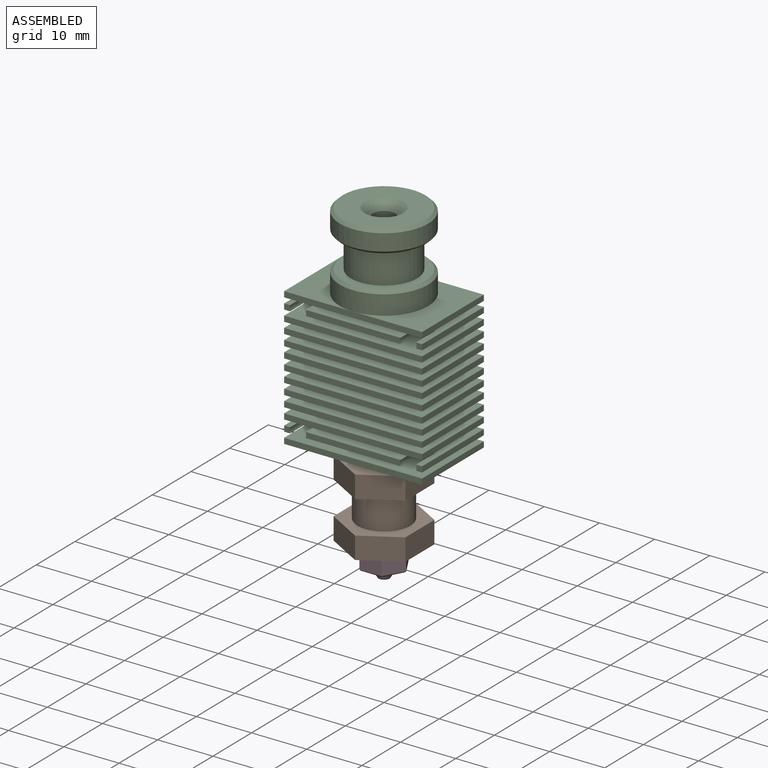
[diagram: assembled view]
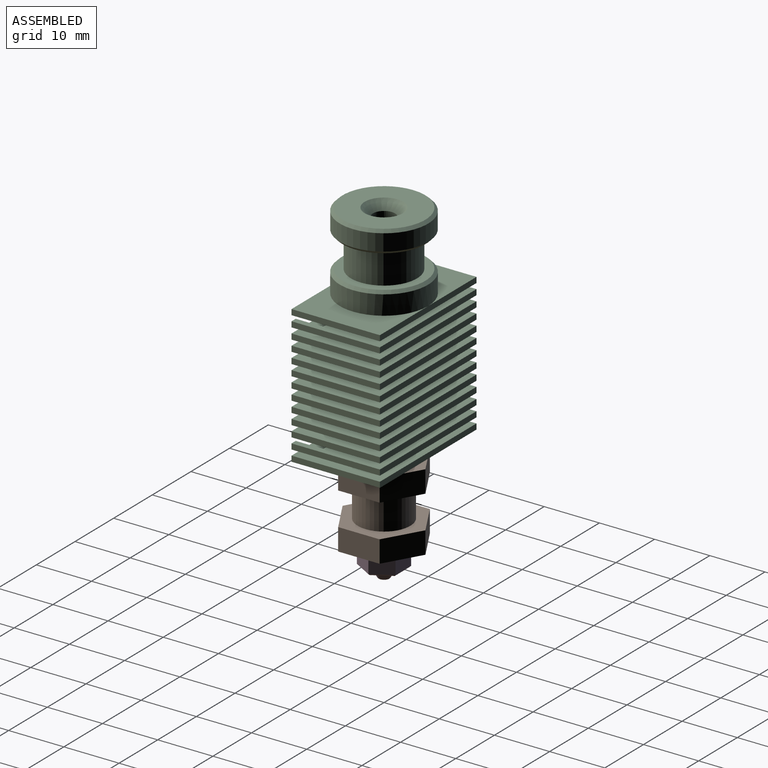
[diagram: assembled view, second angle]
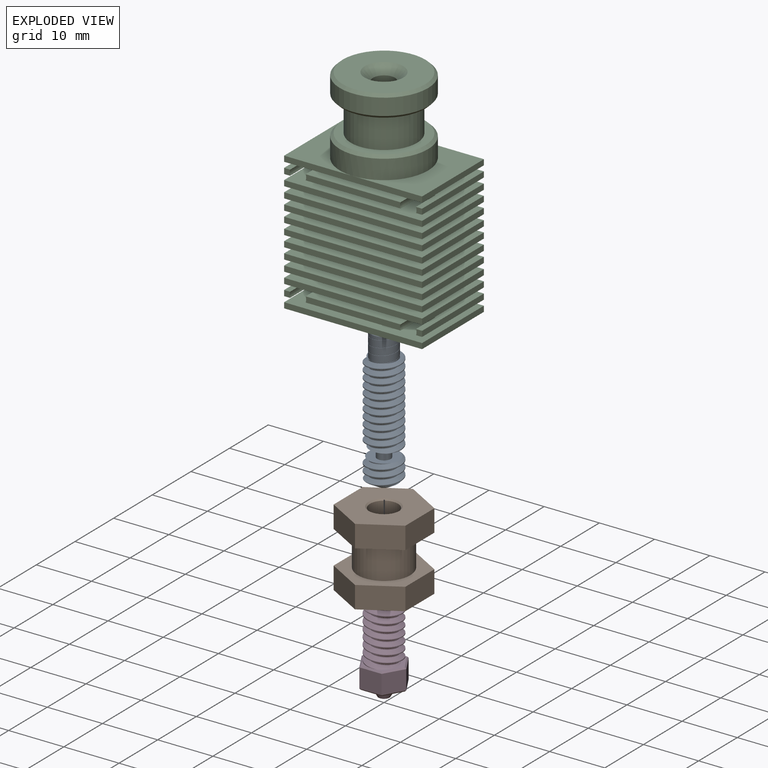
[diagram: exploded view]
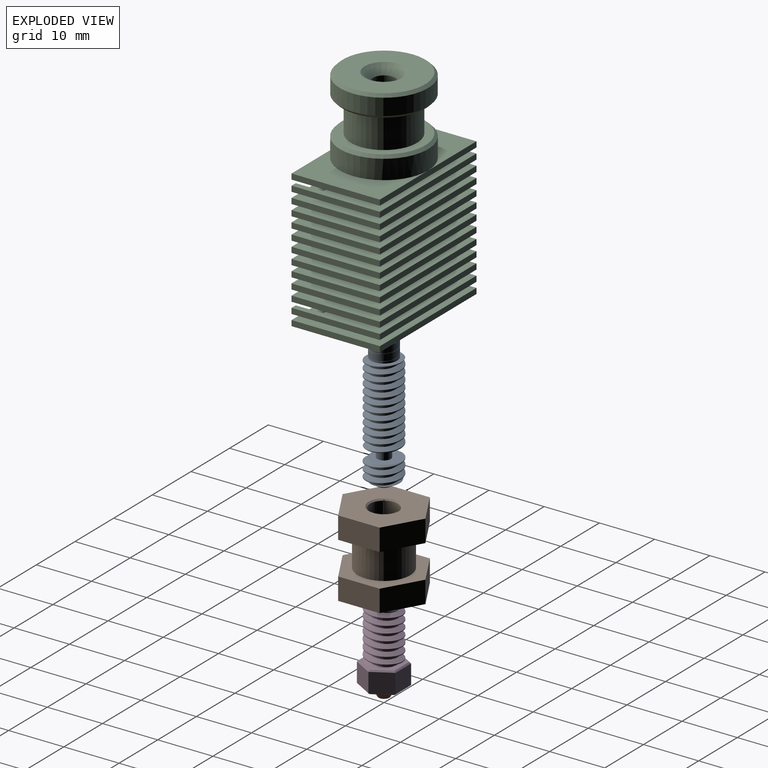
[diagram: exploded view, second angle]
ASSEMBLY  parts=4 mates=3
PART A: 22 faces, bbox 26.4x7x7 mm
  f0: cylinder r=3.17mm len=14.4mm, axis (1,0,0), area 35.9mm2, adj f1,f2,f16,f20
  f1: bspline ~20.04x6.49mm, area 189.3mm2, adj f0,f3,f5,f15,f16,f20
  f2: bspline ~19.57x6.49mm, area 188.1mm2, adj f0,f3,f5,f15,f16,f20
  f3: bspline ~19.09x4.69mm, area 34.5mm2, adj f1,f2,f5,f20
  f4: cylinder r=3.17mm len=6.35mm, axis (1,0,0), area 8.4mm2, adj f6,f7,f12,f21
  f5: cone r=2.22mm half-angle=45deg, axis (-1,0,0), area 2.1mm2, adj f1,f2,f3,f15,f17
  f6: bspline ~6.49x6.49mm, area 46.9mm2, adj f4,f11,f12,f21
  f7: bspline ~6.49x6.49mm, area 47mm2, adj f4,f11,f12,f21
  f8: cylinder r=0.88mm len=20.4mm, axis (-1,0,0), area 112.2mm2, adj f9,f13
  f9: plane 2.45x2.45mm, normal (-1,0,0), area 2.3mm2, adj f8,f12
  f10: plane 4.32x4.32mm, normal (1,0,0), area 0mm2, adj f17,f18
  f11: bspline ~4.7x4.7mm, area 7.1mm2, adj f6,f7,f12,f21
  f12: cone r=1.22mm half-angle=60deg, axis (1,0,0), area 22.6mm2, adj f4,f6,f7,f9,f11
  f13: plane 4x4mm, normal (1,0,0), area 10.2mm2, adj f8,f14
  f14: cylinder r=2mm len=4.85mm, axis (1,0,0), area 60.9mm2, adj f13,f18
  f15: cylinder r=2.38mm len=4.75mm, axis (1,0,0), area 55.4mm2, adj f1,f2,f5,f16
  f16: plane 5.57x5.41mm, normal (1,0,0), area 6.6mm2, adj f0,f1,f2,f15
  f17: cone r=2.16mm half-angle=67.5deg, axis (-1,0,0), area 1.6mm2, adj f5,f10
  f18: cone r=2mm half-angle=45deg, axis (1,0,0), area 2.9mm2, adj f10,f14
  f19: cylinder r=1.22mm len=2.45mm, axis (-1,0,0), area 15.4mm2, adj f20,f21
  f20: plane 5.59x5.58mm, normal (-1,0,0), area 19.5mm2, adj f0,f1,f2,f3,f19
  f21: plane 6.04x6.04mm, normal (1,0,0), area 19.5mm2, adj f4,f6,f7,f11,f19
PART B: 20 faces, bbox 13x15x14 mm
  f0: plane 7.51x4mm, normal (-1,0,0), area 30mm2, adj f1,f5,f6,f7
  f1: plane 6.5x4mm, normal (-0.5,-0.87,0), area 30mm2, adj f0,f2,f6,f7
  f2: plane 6.5x4mm, normal (0.5,-0.87,0), area 30mm2, adj f1,f3,f6,f7
  f3: plane 7.51x4mm, normal (1,0,0), area 30mm2, adj f2,f4,f6,f7
  f4: plane 6.5x4mm, normal (0.5,0.87,0), area 30mm2, adj f3,f5,f6,f7
  f5: plane 6.5x4mm, normal (-0.5,0.87,0), area 30mm2, adj f0,f4,f6,f7
  f6: plane 15.01x13mm, normal (0,0,1), area 75.1mm2, adj f0,f1,f2,f3,f4,f5,f8
  f7: plane 15.01x13mm, normal (0,0,-1), area 121.9mm2, adj f0,f1,f2,f3,f4,f5,f18
  f8: cylinder r=4.76mm len=9.53mm, axis (0,0,-1), area 179.5mm2, adj f6,f16
  f9: plane 6.5x4mm, normal (-0.5,-0.87,0), area 30mm2, adj f10,f14,f15,f16
  f10: plane 6.5x4mm, normal (0.5,-0.87,0), area 30mm2, adj f9,f11,f15,f16
  f11: plane 7.51x4mm, normal (1,0,0), area 30mm2, adj f10,f12,f15,f16
  f12: plane 6.5x4mm, normal (0.5,0.87,0), area 30mm2, adj f11,f13,f15,f16
  f13: plane 6.5x4mm, normal (-0.5,0.87,0), area 30mm2, adj f12,f14,f15,f16
  f14: plane 7.51x4mm, normal (-1,0,0), area 30mm2, adj f9,f13,f15,f16
  f15: plane 15.01x13mm, normal (0,0,1), area 121.9mm2, adj f9,f10,f11,f12,f13,f14,f19
  f16: plane 15.01x13mm, normal (0,0,-1), area 75.1mm2, adj f8,f9,f10,f11,f12,f13,f14
  f17: cylinder r=2.54mm len=13.5mm, axis (0,0,1), area 215.5mm2, adj f18,f19
  f18: cone r=2.79mm half-angle=45deg, axis (0,0,-1), area 5.9mm2, adj f7,f17
  f19: cone r=2.54mm half-angle=45deg, axis (0,0,1), area 5.9mm2, adj f15,f17
PART C: 120 faces, bbox 25x16x39 mm
  f0: plane 25x1mm, normal (0,-1,0), area 25mm2, adj f8,f9,f10,f11,f12
  f1: plane 25x1mm, normal (0,1,0), area 25mm2, adj f8,f9,f10,f11,f12
  f2: plane 15x15mm, normal (0,0,1), area 138.2mm2, adj f14,f17
  f3: cylinder r=8mm len=16mm, axis (0,0,1), area 175.9mm2, adj f8,f11,f15
  f4: plane 15x15mm, normal (0,0,1), area 63.6mm2, adj f5,f15
  f5: cylinder r=6mm len=12mm, axis (0,0,1), area 226.2mm2, adj f4,f6
  f6: plane 15x15mm, normal (0,0,-1), area 63.6mm2, adj f5,f16
  f7: cylinder r=8mm len=16mm, axis (0,0,1), area 150.8mm2, adj f16,f17
  f8: plane 16x12.5mm, normal (0,0,1), area 99.5mm2, adj f0,f1,f3,f9
  f9: plane 16x1mm, normal (-1,0,0), area 16mm2, adj f0,f1,f8,f12
  f10: plane 16x1mm, normal (1,0,0), area 16mm2, adj f0,f1,f11,f12
  f11: plane 16x12.5mm, normal (0,0,1), area 99.5mm2, adj f0,f1,f3,f10
  f12: plane 25x16mm, normal (0,0,-1), area 286.9mm2, adj f0,f1,f9,f10,f62
  f13: cylinder r=2mm len=18.5mm, axis (0,0,1), area 232.5mm2, adj f14,f61
  f14: cone r=2mm half-angle=45deg, axis (0,0,1), area 36.7mm2, adj f2,f13
  f15: cone r=7.5mm half-angle=45deg, axis (0,0,-1), area 34.4mm2, adj f3,f4
  f16: cone r=8mm half-angle=45deg, axis (0,0,1), area 34.4mm2, adj f6,f7
  f17: cone r=7.5mm half-angle=45deg, axis (0,0,-1), area 34.4mm2, adj f2,f7
  f18: plane 25x1mm, normal (0,-1,0), area 25mm2, adj f20,f21,f22,f23
  f19: plane 25x1mm, normal (0,1,0), area 25mm2, adj f20,f21,f22,f23
  f20: plane 16x1mm, normal (1,0,0), area 16mm2, adj f18,f19,f22,f23
  f21: plane 16x1mm, normal (-1,0,0), area 16mm2, adj f18,f19,f22,f23
  f22: plane 25x16mm, normal (0,0,-1), area 286.9mm2, adj f18,f19,f20,f21,f103
  f23: plane 25x16mm, normal (0,0,1), area 286.9mm2, adj f18,f19,f20,f21,f82
  f24: plane 25x1mm, normal (0,-1,0), area 25mm2, adj f26,f27,f28,f29
  f25: plane 25x1mm, normal (0,1,0), area 25mm2, adj f26,f27,f28,f29
  f26: plane 16x1mm, normal (1,0,0), area 16mm2, adj f24,f25,f28,f29
  f27: plane 16x1mm, normal (-1,0,0), area 16mm2, adj f24,f25,f28,f29
  f28: plane 25x16mm, normal (0,0,-1), area 286.9mm2, adj f24,f25,f26,f27,f44
  f29: plane 25x16mm, normal (0,0,1), area 286.9mm2, adj f24,f25,f26,f27,f37
  f30: cylinder r=6mm len=12mm, axis (0,0,-1), area 37.7mm2, adj f31,f77
  f31: plane 25x16mm, normal (0,0,1), area 286.9mm2, adj f30,f32,f33,f34,f35
  f32: plane 16x1mm, normal (-1,0,0), area 16mm2, adj f31,f33,f35,f36
  f33: plane 25x1mm, normal (0,-1,0), area 25mm2, adj f31,f32,f34,f36
  f34: plane 16x1mm, normal (1,0,0), area 16mm2, adj f31,f33,f35,f36
  f35: plane 25x1mm, normal (0,1,0), area 25mm2, adj f31,f32,f34,f36
  f36: plane 25x16mm, normal (0,0,-1), area 286.9mm2, adj f32,f33,f34,f35,f37
  f37: cylinder r=6mm len=12mm, axis (0,0,-1), area 37.7mm2, adj f29,f36
  f38: plane 25x1mm, normal (0,-1,0), area 25mm2, adj f40,f41,f42,f43
  f39: plane 25x1mm, normal (0,1,0), area 25mm2, adj f40,f41,f42,f43
  f40: plane 16x1mm, normal (1,0,0), area 16mm2, adj f38,f39,f42,f43
  f41: plane 16x1mm, normal (-1,0,0), area 16mm2, adj f38,f39,f42,f43
  f42: plane 25x16mm, normal (0,0,-1), area 286.9mm2, adj f38,f39,f40,f41,f45
  f43: plane 25x16mm, normal (0,0,1), area 286.9mm2, adj f38,f39,f40,f41,f44
  f44: cylinder r=6mm len=12mm, axis (0,0,-1), area 37.7mm2, adj f28,f43
  f45: cylinder r=6mm len=12mm, axis (0,0,-1), area 37.7mm2, adj f42,f46
  f46: plane 25x16mm, normal (0,0,1), area 286.9mm2, adj f45,f48,f49,f50,f51
  f47: plane 25x16mm, normal (0,0,-1), area 286.9mm2, adj f48,f49,f50,f51,f82
  f48: plane 16x1mm, normal (-1,0,0), area 16mm2, adj f46,f47,f50,f51
  f49: plane 16x1mm, normal (1,0,0), area 16mm2, adj f46,f47,f50,f51
  f50: plane 25x1mm, normal (0,1,0), area 25mm2, adj f46,f47,f48,f49
  f51: plane 25x1mm, normal (0,-1,0), area 25mm2, adj f46,f47,f48,f49
  f52: cylinder r=6mm len=12mm, axis (0,0,-1), area 37.7mm2, adj f53,f76
  f53: plane 25x16mm, normal (0,0,-1), area 286.9mm2, adj f52,f54,f55,f56,f57
  f54: plane 25x1mm, normal (0,1,0), area 25mm2, adj f53,f55,f57,f58
  f55: plane 16x1mm, normal (1,0,0), area 16mm2, adj f53,f54,f56,f58
  f56: plane 25x1mm, normal (0,-1,0), area 25mm2, adj f53,f55,f57,f58
  f57: plane 16x1mm, normal (-1,0,0), area 16mm2, adj f53,f54,f56,f58
  f58: plane 25x16mm, normal (0,0,1), area 286.9mm2, adj f54,f55,f56,f57,f59
  f59: cylinder r=6mm len=12mm, axis (0,0,-1), area 37.7mm2, adj f58,f60
  f60: plane 25x16mm, normal (0,0,-1), area 258.6mm2, adj f59,f64,f65,f66,f67,f68,f69,f70
  f61: plane 5.11x5.11mm, normal (0,0,-1), area 7.9mm2, adj f13,f119
  f62: cylinder r=6mm len=12mm, axis (0,0,-1), area 37.7mm2, adj f12,f63
  f63: plane 25x16mm, normal (0,0,1), area 258.6mm2, adj f62,f64,f65,f66,f67,f68,f69,f70
  f64: plane 3x1mm, normal (0,-1,0), area 2.9mm2, adj f60,f63,f65,f75
  f65: cylinder r=1.5mm len=5mm, axis (0,-1,0), area 5.1mm2, adj f60,f63,f64,f66
  f66: plane 1.09x1mm, normal (0,-1,0), area 1mm2, adj f60,f63,f65,f67
  f67: plane 16x1mm, normal (1,0,0), area 16mm2, adj f60,f63,f66,f68
  f68: plane 25x1mm, normal (0,1,0), area 25mm2, adj f60,f63,f67,f69
  f69: plane 16x1mm, normal (-1,0,0), area 16mm2, adj f60,f63,f68,f70
  f70: plane 1.09x1mm, normal (0,-1,0), area 1mm2, adj f60,f63,f69,f71
  f71: cylinder r=1.5mm len=5mm, axis (0,-1,0), area 5.1mm2, adj f60,f63,f70,f72
  f72: plane 3x1mm, normal (0,-1,0), area 2.9mm2, adj f60,f63,f71,f73
  f73: cylinder r=1.5mm len=5mm, axis (0,-1,0), area 5.1mm2, adj f60,f63,f72,f74
  f74: plane 17.17x1mm, normal (0,-1,0), area 17.1mm2, adj f60,f63,f73,f75
  f75: cylinder r=1.5mm len=5mm, axis (0,-1,0), area 5.1mm2, adj f60,f63,f64,f74
  f76: plane 25x16mm, normal (0,0,1), area 286.9mm2, adj f52,f78,f79,f80,f81
  f77: plane 25x16mm, normal (0,0,-1), area 286.9mm2, adj f30,f78,f79,f80,f81
  f78: plane 16x1mm, normal (-1,0,0), area 16mm2, adj f76,f77,f80,f81
  f79: plane 16x1mm, normal (1,0,0), area 16mm2, adj f76,f77,f80,f81
  f80: plane 25x1mm, normal (0,1,0), area 25mm2, adj f76,f77,f78,f79
  f81: plane 25x1mm, normal (0,-1,0), area 25mm2, adj f76,f77,f78,f79
  f82: cylinder r=6mm len=12mm, axis (0,0,-1), area 37.7mm2, adj f23,f47
  f83: plane 17.17x1mm, normal (0,-1,0), area 17.1mm2, adj f89,f90,f91,f95
  f84: plane 1.09x1mm, normal (0,-1,0), area 1mm2, adj f88,f89,f90,f92
  f85: plane 1.09x1mm, normal (0,-1,0), area 1mm2, adj f87,f89,f90,f94
  f86: plane 25x1mm, normal (0,1,0), area 25mm2, adj f87,f88,f89,f90
  f87: plane 16x1mm, normal (1,0,0), area 16mm2, adj f85,f86,f89,f90
  f88: plane 16x1mm, normal (-1,0,0), area 16mm2, adj f84,f86,f89,f90
  f89: plane 25x16mm, normal (0,0,-1), area 258.6mm2, adj f83,f84,f85,f86,f87,f88,f91,f92
  f90: plane 25x16mm, normal (0,0,1), area 258.6mm2, adj f83,f84,f85,f86,f87,f88,f91,f92
  f91: cylinder r=1.5mm len=5mm, axis (0,-1,0), area 5.1mm2, adj f83,f89,f90,f93
  f92: cylinder r=1.5mm len=5mm, axis (0,-1,0), area 5.1mm2, adj f84,f89,f90,f93
  f93: plane 3x1mm, normal (0,-1,0), area 2.9mm2, adj f89,f90,f91,f92
  f94: cylinder r=1.5mm len=5mm, axis (0,-1,0), area 5.1mm2, adj f85,f89,f90,f96
  f95: cylinder r=1.5mm len=5mm, axis (0,-1,0), area 5.1mm2, adj f83,f89,f90,f96
  f96: plane 3x1mm, normal (0,-1,0), area 2.9mm2, adj f89,f90,f94,f95
  f97: plane 25x1mm, normal (0,-1,0), area 25mm2, adj f99,f100,f101,f102
  f98: plane 25x1mm, normal (0,1,0), area 25mm2, adj f99,f100,f101,f102
  f99: plane 16x1mm, normal (1,0,0), area 16mm2, adj f97,f98,f101,f102
  f100: plane 16x1mm, normal (-1,0,0), area 16mm2, adj f97,f98,f101,f102
  f101: plane 25x16mm, normal (0,0,-1), area 286.9mm2, adj f97,f98,f99,f100,f111
  f102: plane 25x16mm, normal (0,0,1), area 286.9mm2, adj f97,f98,f99,f100,f110
  f103: cylinder r=6mm len=12mm, axis (0,0,-1), area 37.7mm2, adj f22,f104
  f104: plane 25x16mm, normal (0,0,1), area 286.9mm2, adj f103,f106,f107,f108,f109
  f105: plane 25x16mm, normal (0,0,-1), area 286.9mm2, adj f106,f107,f108,f109,f110
  f106: plane 16x1mm, normal (-1,0,0), area 16mm2, adj f104,f105,f108,f109
  f107: plane 16x1mm, normal (1,0,0), area 16mm2, adj f104,f105,f108,f109
  f108: plane 25x1mm, normal (0,1,0), area 25mm2, adj f104,f105,f106,f107
  f109: plane 25x1mm, normal (0,-1,0), area 25mm2, adj f104,f105,f106,f107
  f110: cylinder r=6mm len=12mm, axis (0,0,-1), area 37.7mm2, adj f102,f105
  f111: cylinder r=6mm len=12mm, axis (0,0,-1), area 37.7mm2, adj f90,f101
  f112: plane 25x16mm, normal (0,0,-1), area 379.5mm2, adj f113,f114,f115,f116,f119
  f113: plane 25x1mm, normal (0,-1,0), area 25mm2, adj f112,f115,f116,f117
  f114: plane 25x1mm, normal (0,1,0), area 25mm2, adj f112,f115,f116,f117
  f115: plane 16x1mm, normal (1,0,0), area 16mm2, adj f112,f113,f114,f117
  f116: plane 16x1mm, normal (-1,0,0), area 16mm2, adj f112,f113,f114,f117
  f117: plane 25x16mm, normal (0,0,1), area 286.9mm2, adj f113,f114,f115,f116,f118
  f118: cylinder r=6mm len=12mm, axis (0,0,-1), area 37.7mm2, adj f89,f117
  f119: cylinder r=2.55mm len=19mm, axis (0,0,-1), area 304.7mm2, adj f61,f112
PART D: 31 faces, bbox 17x8.6x7.5 mm
  f0: cylinder r=3.17mm len=8.95mm, axis (-1,0,0), area 22.3mm2, adj f1,f3,f4,f13
  f1: bspline ~11.31x6.49mm, area 123.8mm2, adj f0,f2,f4,f13
  f2: bspline ~10.09x4.69mm, area 18mm2, adj f1,f3,f4,f13
  f3: bspline ~10.52x6.49mm, area 121.7mm2, adj f0,f2,f4,f13
  f4: cone r=2.22mm half-angle=45deg, axis (1,0,0), area 12.3mm2, adj f0,f1,f2,f3,f5
  f5: plane 4.45x4.45mm, normal (-1,0,0), area 9.6mm2, adj f4,f18
  f6: plane 3.5x3.5mm, normal (0,0.87,0.5), area 14.1mm2, adj f7,f11,f21,f29
  f7: plane 3.5x3.5mm, normal (0,0.87,-0.5), area 14.1mm2, adj f6,f8,f23,f30
  f8: plane 4.04x3.5mm, normal (0,0,-1), area 14.1mm2, adj f7,f9,f24,f28
  f9: plane 3.5x3.5mm, normal (0,-0.87,-0.5), area 14.1mm2, adj f8,f10,f22,f26
  f10: plane 3.5x3.5mm, normal (0,-0.87,0.5), area 14.1mm2, adj f9,f11,f20,f25
  f11: plane 4.04x3.5mm, normal (0,0,1), area 14.1mm2, adj f6,f10,f19,f27
  f12: plane 7.51x6.5mm, normal (1,0,0), area 24mm2, adj f16,f19,f20,f21,f22,f23,f24
  f13: plane 8.01x7mm, normal (-1,0,0), area 12.3mm2, adj f0,f1,f2,f3,f25,f26,f27,f28
  f14: cylinder r=0.88mm len=13.4mm, axis (1,0,0), area 73.7mm2, adj f17,f18
  f15: plane 1.98x1.98mm, normal (1,0,0), area 3mm2, adj f16,f17
  f16: cone r=2mm half-angle=30deg, axis (-1,0,0), area 19mm2, adj f12,f15
  f17: cone r=0.2mm half-angle=21deg, axis (-1,0,0), area 6.3mm2, adj f14,f15
  f18: cone r=0.88mm half-angle=45deg, axis (-1,0,0), area 5mm2, adj f5,f14
  f19: plane 4.04x0.25mm, normal (0.71,0,0.71), area 1.4mm2, adj f11,f12,f20,f21
  f20: plane 3.5x2.17mm, normal (0.71,-0.61,0.35), area 1.4mm2, adj f10,f12,f19,f22
  f21: plane 3.5x2.17mm, normal (0.71,0.61,0.35), area 1.4mm2, adj f6,f12,f19,f23
  f22: plane 3.5x2.17mm, normal (0.71,-0.61,-0.35), area 1.4mm2, adj f9,f12,f20,f24
  f23: plane 3.5x2.17mm, normal (0.71,0.61,-0.35), area 1.4mm2, adj f7,f12,f21,f24
  f24: plane 4.04x0.25mm, normal (0.71,0,-0.71), area 1.4mm2, adj f8,f12,f22,f23
  f25: plane 3.5x2.17mm, normal (-0.71,-0.61,0.35), area 1.4mm2, adj f10,f13,f26,f27
  f26: plane 3.5x2.17mm, normal (-0.71,-0.61,-0.35), area 1.4mm2, adj f9,f13,f25,f28
  f27: plane 4.04x0.25mm, normal (-0.71,0,0.71), area 1.4mm2, adj f11,f13,f25,f29
  f28: plane 4.04x0.25mm, normal (-0.71,0,-0.71), area 1.4mm2, adj f8,f13,f26,f30
  f29: plane 3.5x2.17mm, normal (-0.71,0.61,0.35), area 1.4mm2, adj f6,f13,f27,f30
  f30: plane 3.5x2.17mm, normal (-0.71,0.61,-0.35), area 1.4mm2, adj f7,f13,f28,f29
PLACE A rot(axis=(0.71,0,0.71),180deg) t=(0,0,-16.71)mm
PLACE B rot(axis=(-0.3,0.04,0.95),0deg) t=(0,0,-38.91)mm
PLACE C at identity fixed
PLACE D rot(axis=(0.58,0.58,-0.58),120deg) t=(0,0,-41.61)mm
MATE cylindrical D.f0 <-> B.f8  axis (0,0,1) through (0,0,-28.91)mm
MATE cylindrical C.f14 <-> A.f0  axis (0,0,-1) through (0,0,-4.06)mm
MATE cylindrical B.f8 <-> A.f0  axis (0,0,1) through (0,0,-24.91)mm
